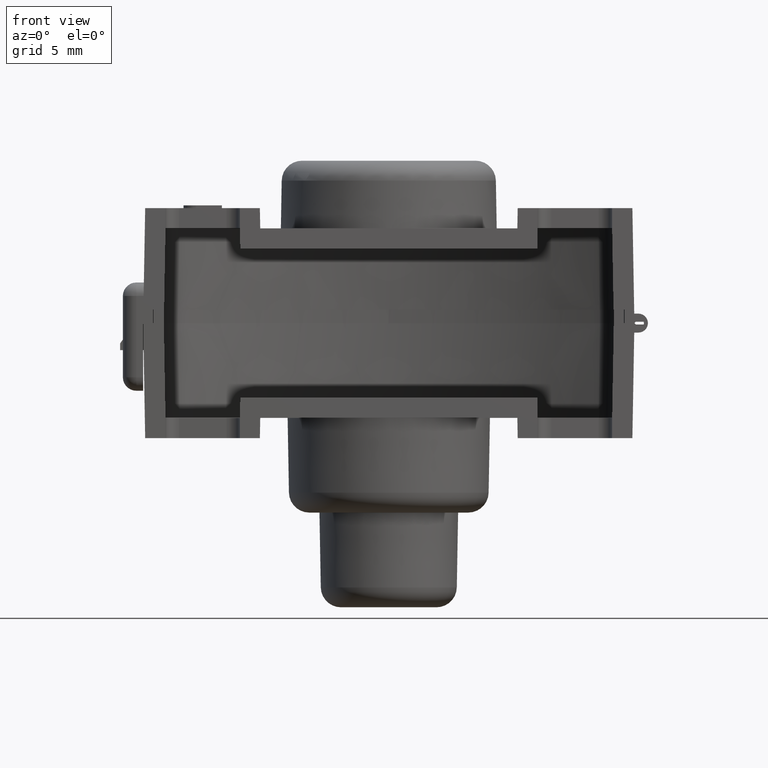
[diagram: clean part render]
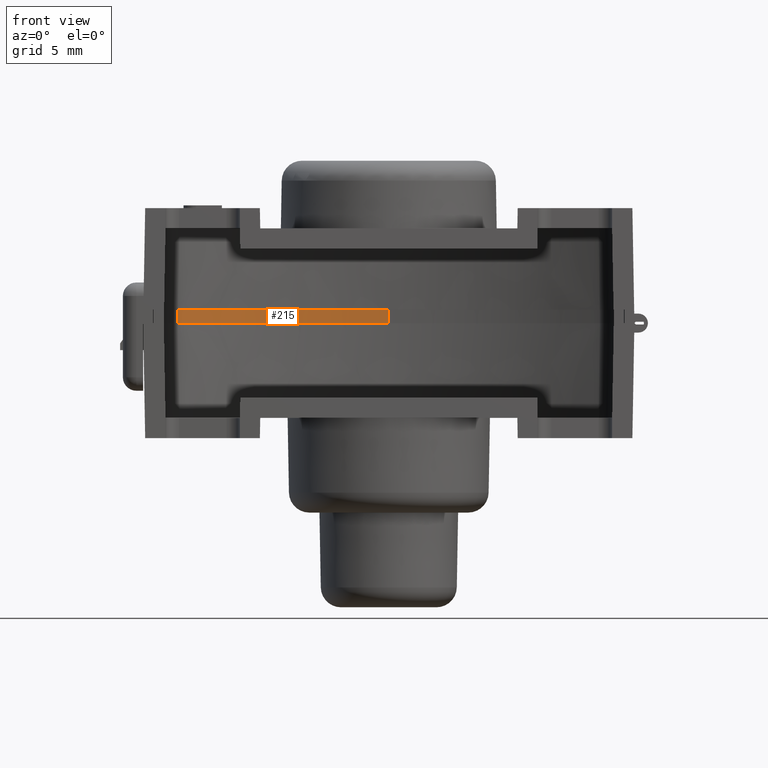
[diagram: same view with one face highlighted and labeled with its STEP entity id]
A machine part, front view. The second image highlights one B-rep face of the part: STEP entity #215.
In plain terms, the highlighted cylindrical surface (partial cylindrical patch) has radius 30.1222 mm, axis along (0, 0, 1).
Its self-contained STEP definition (entity closure, byte-faithful):
#215=ADVANCED_FACE('',(#542),#543,.F.);
#542=FACE_OUTER_BOUND('',#1014,.T.);
#543=CYLINDRICAL_SURFACE('',#1015,30.1221854544975);
#1014=EDGE_LOOP('',(#2226,#2227,#2228,#2229));
#1015=AXIS2_PLACEMENT_3D('',#2230,#2231,#2232);
#2226=ORIENTED_EDGE('',*,*,#3102,.F.);
#2227=ORIENTED_EDGE('',*,*,#3103,.F.);
#2228=ORIENTED_EDGE('',*,*,#3104,.T.);
#2229=ORIENTED_EDGE('',*,*,#3105,.T.);
#2230=CARTESIAN_POINT('',(0.0,-22.0,-11.0));
#2231=DIRECTION('',(5.79135730766399E-17,1.22464679914735E-16,1.0));
#2232=DIRECTION('',(1.04581937522117E-48,1.0,-1.22464679914735E-16));
#3102=EDGE_CURVE('',#3804,#3805,#3806,.T.);
#3103=EDGE_CURVE('',#3807,#3804,#3808,.T.);
#3104=EDGE_CURVE('',#3807,#3809,#3810,.T.);
#3105=EDGE_CURVE('',#3809,#3805,#3811,.T.);
#3804=VERTEX_POINT('',#5020);
#3805=VERTEX_POINT('',#5021);
#3806=LINE('',#5022,#5023);
#3807=VERTEX_POINT('',#5024);
#3808=CIRCLE('',#5025,30.1221854544975);
#3809=VERTEX_POINT('',#5026);
#3810=LINE('',#5027,#5028);
#3811=CIRCLE('',#5029,30.1221854544975);
#5020=CARTESIAN_POINT('',(3.68890380001733E-15,8.1221854544975,-11.0));
#5021=CARTESIAN_POINT('',(3.63099022694069E-15,8.1221854544975,-12.0));
#5022=CARTESIAN_POINT('',(3.65994701347901E-15,8.1221854544975,-11.5));
#5023=VECTOR('',#6011,1.0);
#5024=CARTESIAN_POINT('',(-15.5989888960791,3.7685389957433,-11.0));
#5025=AXIS2_PLACEMENT_3D('',#6012,#6013,#6014);
#5026=CARTESIAN_POINT('',(-15.5989888960791,3.76853899574325,-12.0));
#5027=CARTESIAN_POINT('',(-15.5989888960791,3.7685389957433,-11.0));
#5028=VECTOR('',#6015,1000.0);
#5029=AXIS2_PLACEMENT_3D('',#6016,#6017,#6018);
#6011=DIRECTION('',(-5.79135730766399E-17,-1.22464679914735E-16,-1.0));
#6012=CARTESIAN_POINT('',(0.0,-22.0,-11.0));
#6013=DIRECTION('',(-1.15503135381051E-16,-1.22464679914735E-16,-1.0));
#6014=DIRECTION('',(1.0,-1.41450545035887E-32,-1.15503135381051E-16));
#6015=DIRECTION('',(-5.79135730766399E-17,-1.22464679914735E-16,-1.0));
#6016=CARTESIAN_POINT('',(0.0,-22.0,-12.0));
#6017=DIRECTION('',(0.0,-1.22464679914735E-16,-1.0));
#6018=DIRECTION('',(1.0,0.0,0.0));